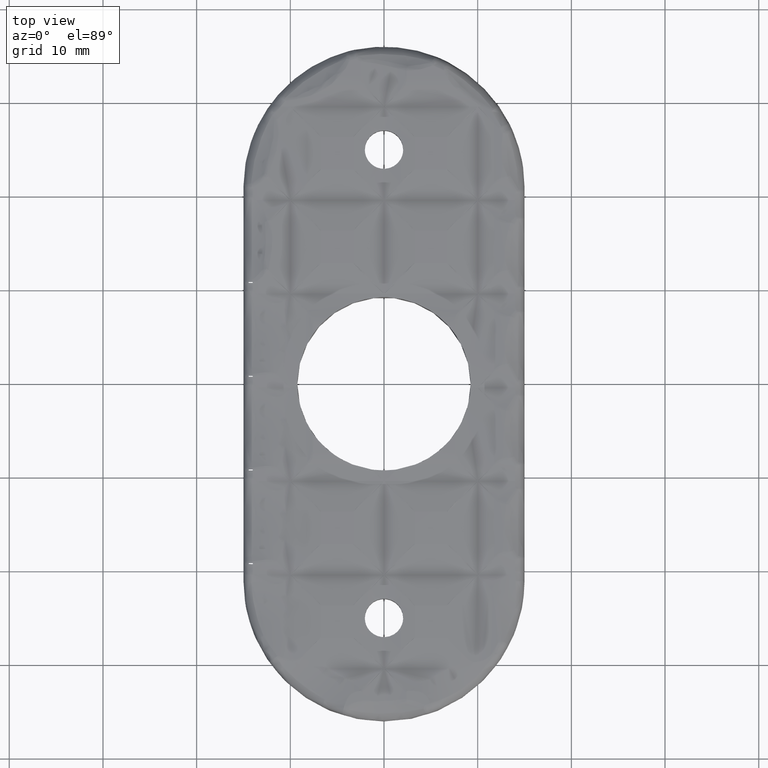
[diagram: clean part render]
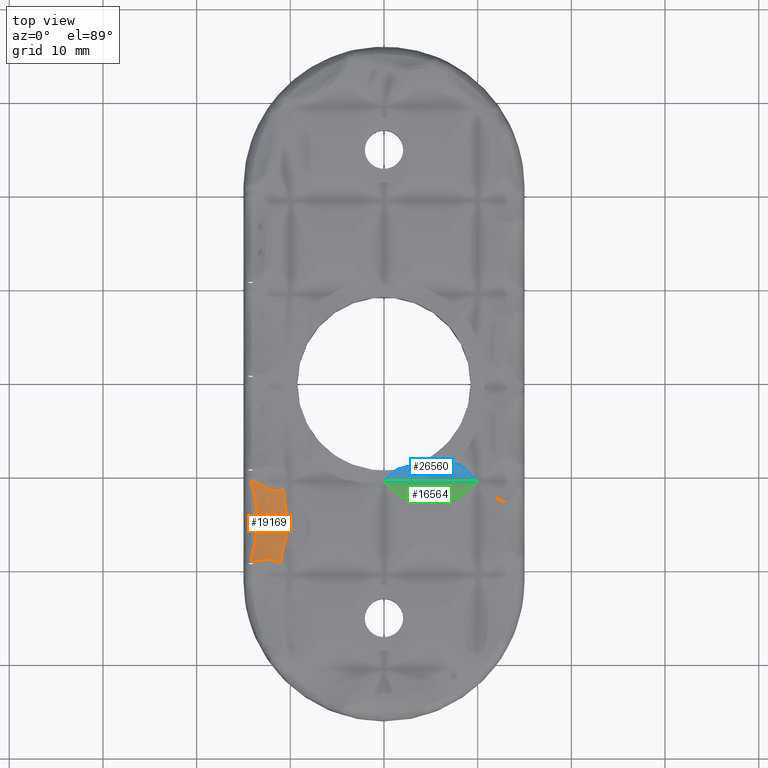
[diagram: same view with three faces highlighted in distinct colors, each labeled with its STEP entity id]
A machine part, top view with three faces highlighted in distinct colors.
Their STEP definitions:

[orange] entity #19169 — the highlighted face is a freeform B-spline surface patch.
#29 = CARTESIAN_POINT ( 'NONE',  ( -14.08608896316507000, -18.77497448229085800, 3.248584083875613700 ) ) ;
#640 = CARTESIAN_POINT ( 'NONE',  ( -14.12127469794403500, -10.54882673199064400, 3.171531712919891900 ) ) ;
#817 = CARTESIAN_POINT ( 'NONE',  ( -14.11266342140069000, -10.46110090897416000, 3.190565799841316200 ) ) ;
#848 = VERTEX_POINT ( 'NONE', #3709 ) ;
#855 = CARTESIAN_POINT ( 'NONE',  ( -14.12127809587029000, -18.42023171793272200, 3.171527061294322700 ) ) ;
#1003 = CARTESIAN_POINT ( 'NONE',  ( -10.75634458541407700, -11.20495393595386900, 3.274764121725517000 ) ) ;
#1025 = CARTESIAN_POINT ( 'NONE',  ( -10.75534529548593500, -11.20991074370599700, 3.274698613453655800 ) ) ;
#1042 = CARTESIAN_POINT ( 'NONE',  ( -12.65750095005525300, -18.77559889850161700, 3.337555865132876500 ) ) ;
#1081 = CARTESIAN_POINT ( 'NONE',  ( -10.75434591489991300, -11.21486921703347800, 3.274633234884894800 ) ) ;
#1103 = CARTESIAN_POINT ( 'NONE',  ( -10.64176919335431000, -11.77482324838714700, 3.267282739368983600 ) ) ;
#1121 = CARTESIAN_POINT ( 'NONE',  ( -11.66338399263677100, -18.86432929092068600, 3.336994703460364400 ) ) ;
#1170 = CARTESIAN_POINT ( 'NONE',  ( -10.55928281383110900, -12.34032385916235200, 3.263409995133653500 ) ) ;
#1194 = CARTESIAN_POINT ( 'NONE',  ( -10.47898777796058000, -13.20420938185235800, 3.259894462820795500 ) ) ;
#1268 = CARTESIAN_POINT ( 'NONE',  ( -10.45949912024674700, -13.49479079247724300, 3.259127720159465300 ) ) ;
#1292 = CARTESIAN_POINT ( 'NONE',  ( -10.43549811671231700, -14.08134098076543600, 3.258198122844667500 ) ) ;
#1351 = CARTESIAN_POINT ( 'NONE',  ( -10.43101659318880800, -14.37836852408708800, 3.258035844533576400 ) ) ;
#1379 = CARTESIAN_POINT ( 'NONE',  ( -10.43763718635152800, -14.97144304084417900, 3.258284712206336300 ) ) ;
#1475 = CARTESIAN_POINT ( 'NONE',  ( -10.44875556425562600, -15.26823984790638800, 3.258696774912474200 ) ) ;
#1480 = CARTESIAN_POINT ( 'NONE',  ( -12.56699186604595300, -18.56243408978601700, 3.453152798270545000 ) ) ;
#1574 = CARTESIAN_POINT ( 'NONE',  ( -10.48583430022490500, -15.85299296104909800, 3.260196526094101700 ) ) ;
#1579 = CARTESIAN_POINT ( 'NONE',  ( -13.67270539918670000, -16.52433896878234200, 2.955386151759011000 ) ) ;
#1664 = CARTESIAN_POINT ( 'NONE',  ( -11.57709643640317600, -11.44860505594644500, 3.292063784340134800 ) ) ;
#1665 = CARTESIAN_POINT ( 'NONE',  ( -10.51177153858324300, -16.14189017327682400, 3.261283940124938500 ) ) ;
#1671 = CARTESIAN_POINT ( 'NONE',  ( -10.43763457917427000, -14.97144317992695400, 3.258284613455253900 ) ) ;
#1747 = CARTESIAN_POINT ( 'NONE',  ( -12.93933792647229600, -10.93002011932497400, 3.248262553762135200 ) ) ;
#1749 = CARTESIAN_POINT ( 'NONE',  ( -10.61099334781181400, -16.99850038507645800, 3.265964647030933600 ) ) ;
#1752 = CARTESIAN_POINT ( 'NONE',  ( -12.04009868456995300, -13.42459485416780800, 3.324634811497817900 ) ) ;
#1838 = CARTESIAN_POINT ( 'NONE',  ( -13.65297826025540200, -10.51100821629710000, 3.232020570116771900 ) ) ;
#1840 = CARTESIAN_POINT ( 'NONE',  ( -13.63193341852450200, -16.23722065709158700, 2.937712375095038000 ) ) ;
#1841 = CARTESIAN_POINT ( 'NONE',  ( -13.83421942451184200, -11.59691720527755400, 3.028619630247299600 ) ) ;
#2195 = EDGE_CURVE ( 'NONE', #848, #9812, #15584, .T. ) ;
#2202 = CARTESIAN_POINT ( 'NONE',  ( -10.70554258700268800, -17.55620248847762000, 3.270890588806700800 ) ) ;
#2308 = CARTESIAN_POINT ( 'NONE',  ( -10.88958622955494700, -18.37279387089781900, 3.284107850035698800 ) ) ;
#2388 = CARTESIAN_POINT ( 'NONE',  ( -10.95797563292690100, -18.64106561464483700, 3.289514772152366100 ) ) ;
#2479 = CARTESIAN_POINT ( 'NONE',  ( -11.05808089865549300, -18.99266603521926600, 3.298483966626378500 ) ) ;
#2662 = VERTEX_POINT ( 'NONE', #23344 ) ;
#3043 = CARTESIAN_POINT ( 'NONE',  ( -13.61912900768670900, -18.89016489367905600, 3.305571317586395400 ) ) ;
#3113 = CARTESIAN_POINT ( 'NONE',  ( -11.11274259047612000, -19.17421630962164500, 3.303668035174709900 ) ) ;
#3132 = CARTESIAN_POINT ( 'NONE',  ( -12.58069621622465000, -18.77185226206378500, 3.339151667982780000 ) ) ;
#3218 = CARTESIAN_POINT ( 'NONE',  ( -11.54335839634183700, -18.90714190583469900, 3.332428914038684000 ) ) ;
#3362 = CARTESIAN_POINT ( 'NONE',  ( -10.81267136967503000, -11.25692458919599300, 3.278456601918391400 ) ) ;
#3571 = CARTESIAN_POINT ( 'NONE',  ( -11.10570044068573000, -19.15992999058930500, 3.302750549445874200 ) ) ;
#3661 = CARTESIAN_POINT ( 'NONE',  ( -10.87466198095676400, -11.30023502554278500, 3.281766990252890500 ) ) ;
#3665 = CARTESIAN_POINT ( 'NONE',  ( -12.14006909611955200, -16.56565009251457000, 3.346967179855549800 ) ) ;
#3709 = CARTESIAN_POINT ( 'NONE',  ( -11.11274259047612000, -19.17421630962164500, 3.303668035174709900 ) ) ;
#3749 = CARTESIAN_POINT ( 'NONE',  ( -11.75884825382949600, -11.43107546748622900, 3.289535123995516400 ) ) ;
#3754 = CARTESIAN_POINT ( 'NONE',  ( -13.52203766915548600, -14.80787497265431400, 2.891520926480271500 ) ) ;
#3843 = CARTESIAN_POINT ( 'NONE',  ( -13.11129144720517000, -10.82892264719667000, 3.242980330843358200 ) ) ;
#3847 = CARTESIAN_POINT ( 'NONE',  ( -10.55928025569849600, -12.34032324665572000, 3.263409871154903100 ) ) ;
#3934 = CARTESIAN_POINT ( 'NONE',  ( -13.67599011074464100, -10.49822588501671000, 3.231742419207281900 ) ) ;
#3937 = CARTESIAN_POINT ( 'NONE',  ( -13.80427972380105000, -17.23170032047962900, 3.014776672256118200 ) ) ;
#3942 = CARTESIAN_POINT ( 'NONE',  ( -12.66828385294414100, -10.05530009349831400, 3.480388394514824400 ) ) ;
#4210 = CARTESIAN_POINT ( 'NONE',  ( -14.12127809587029000, -18.42023171793272200, 3.171527061294322700 ) ) ;
#4894 = CARTESIAN_POINT ( 'NONE',  ( -14.06797781313101900, -18.95391342304952800, 3.286946360126998400 ) ) ;
#5122 = CARTESIAN_POINT ( 'NONE',  ( -13.46333462915508700, -18.86713438048373700, 3.311699757188719200 ) ) ;
#5154 = ORIENTED_EDGE ( 'NONE', *, *, #20246, .F. ) ;
#5210 = CARTESIAN_POINT ( 'NONE',  ( -12.41630744589956200, -18.76590107451609400, 3.342233584557799700 ) ) ;
#5293 = CARTESIAN_POINT ( 'NONE',  ( -11.45767771715059900, -18.94370267578251100, 3.328441149360345200 ) ) ;
#5563 = CARTESIAN_POINT ( 'NONE',  ( -11.84715717390270100, -21.04130513615603700, 3.398499096508719400 ) ) ;
#5644 = CARTESIAN_POINT ( 'NONE',  ( -13.88835184374420500, -17.58932713497514700, 3.054809098065520300 ) ) ;
#5735 = CARTESIAN_POINT ( 'NONE',  ( -11.02832955090184600, -11.37625945500183800, 3.287766743847648800 ) ) ;
#5740 = CARTESIAN_POINT ( 'NONE',  ( -10.51176896120617400, -16.14189064672022400, 3.261283825898672700 ) ) ;
#5799 = ORIENTED_EDGE ( 'NONE', *, *, #21673, .T. ) ;
#5823 = CARTESIAN_POINT ( 'NONE',  ( -12.12090361847039700, -11.32891879009485200, 3.278642505816386200 ) ) ;
#5830 = CARTESIAN_POINT ( 'NONE',  ( -12.00361093669609300, -14.39664264818160300, 3.316698256355744300 ) ) ;
#5916 = CARTESIAN_POINT ( 'NONE',  ( -13.22576612324287400, -10.76081581269757200, 3.239904783062847100 ) ) ;
#5920 = CARTESIAN_POINT ( 'NONE',  ( -13.59088973012240400, -13.06062481798946700, 2.920300505853398000 ) ) ;
#6001 = CARTESIAN_POINT ( 'NONE',  ( -13.68397264075846900, -10.49380998447381700, 3.231648538990244700 ) ) ;
#6002 = CARTESIAN_POINT ( 'NONE',  ( -14.03331305374822900, -18.14264689571723100, 3.125661057175119300 ) ) ;
#6004 = CARTESIAN_POINT ( 'NONE',  ( -11.50763233871267500, -8.655850841887836800, 3.346812488352004100 ) ) ;
#6146 = FACE_OUTER_BOUND ( 'NONE', #17475, .T. ) ;
#6639 = CARTESIAN_POINT ( 'NONE',  ( -11.08505249819601000, -19.08390178278178000, 3.300990599754304100 ) ) ;
#6652 = ORIENTED_EDGE ( 'NONE', *, *, #13157, .T. ) ;
#7111 = VERTEX_POINT ( 'NONE', #4894 ) ;
#7211 = CARTESIAN_POINT ( 'NONE',  ( -13.37116517848814800, -18.85380774133280100, 3.315214977300750700 ) ) ;
#7300 = CARTESIAN_POINT ( 'NONE',  ( -12.09509924048723800, -18.78136081552913300, 3.343910578518153500 ) ) ;
#7398 = CARTESIAN_POINT ( 'NONE',  ( -11.20446678731120500, -19.08750402886898100, 3.312536170980383800 ) ) ;
#7662 = CARTESIAN_POINT ( 'NONE',  ( -11.63318485960221200, -20.60815257412632900, 3.363871405594851100 ) ) ;
#7762 = CARTESIAN_POINT ( 'NONE',  ( -12.39944729177047800, -17.92476629100268300, 3.409473129425744100 ) ) ;
#7851 = CARTESIAN_POINT ( 'NONE',  ( -11.12157496994317400, -11.40682307767728100, 3.290186510476192700 ) ) ;
#7857 = CARTESIAN_POINT ( 'NONE',  ( -13.56408902241644800, -15.58513506312995200, 2.909015788948654100 ) ) ;
#7932 = CARTESIAN_POINT ( 'NONE',  ( -12.35971513020866100, -11.23304506393810700, 3.269795982085604600 ) ) ;
#7937 = CARTESIAN_POINT ( 'NONE',  ( -10.43549550867480700, -14.08134086560491100, 3.258198024540051000 ) ) ;
#8022 = CARTESIAN_POINT ( 'NONE',  ( -13.27039229872480600, -10.73417717660157700, 3.238824239298447000 ) ) ;
#8024 = CARTESIAN_POINT ( 'NONE',  ( -13.80389853147005200, -11.73906701721583100, 3.014617442048445700 ) ) ;
#8026 = CARTESIAN_POINT ( 'NONE',  ( -12.16342075313206900, -12.24138960753624900, 3.352132158567444600 ) ) ;
#8111 = CARTESIAN_POINT ( 'NONE',  ( -13.90635844015006700, -10.37100714211422000, 3.229432356233613800 ) ) ;
#8117 = CARTESIAN_POINT ( 'NONE',  ( -14.09643371043636000, -10.61388325712952800, 3.157732706141940700 ) ) ;
#8505 = ORIENTED_EDGE ( 'NONE', *, *, #26538, .T. ) ;
#9099 = CARTESIAN_POINT ( 'NONE',  ( -14.10401149833305300, -10.37380509530126600, 3.209526423700795700 ) ) ;
#9309 = CARTESIAN_POINT ( 'NONE',  ( -13.32663909407535400, -18.84749991254100700, 3.316880306233556600 ) ) ;
#9410 = CARTESIAN_POINT ( 'NONE',  ( -11.89440467729722800, -18.80940626483058900, 3.342199274661136400 ) ) ;
#9495 = EDGE_CURVE ( 'NONE', #9812, #2662, #16875, .T. ) ;
#9574 = B_SPLINE_CURVE_WITH_KNOTS ( 'NONE', 3,
 ( #14594, #29, #16667, #4210 ),
 .UNSPECIFIED., .F., .F.,
 ( 4, 4 ),
 ( 0.0000000000000000000, 1.000000000000000000 ),
 .UNSPECIFIED. ) ;
#9772 = CARTESIAN_POINT ( 'NONE',  ( -14.15919381606641300, -18.55103691980717100, 3.190506646060893300 ) ) ;
#9812 = VERTEX_POINT ( 'NONE', #10454 ) ;
#9853 = CARTESIAN_POINT ( 'NONE',  ( -14.12127469794403500, -10.54882673199064400, 3.171531712919891900 ) ) ;
#9857 = CARTESIAN_POINT ( 'NONE',  ( -10.88958380947025400, -18.37279498214034500, 3.284107663156959200 ) ) ;
#9942 = CARTESIAN_POINT ( 'NONE',  ( -11.23245593306472800, -11.43514590497886200, 3.292345228060827200 ) ) ;
#9946 = CARTESIAN_POINT ( 'NONE',  ( -12.04528898360324800, -15.61742707611720600, 3.325786392184102000 ) ) ;
#9970 = B_SPLINE_CURVE_WITH_KNOTS ( 'NONE', 3,
 ( #23833, #25917, #15509, #3043, #17627, #5122, #19701, #7211, #21826, #9309, #23919, #11412, #26015, #13513, #1042, #15593, #3132, #17703, #5210, #19793, #7300, #21909, #9410, #24011, #11499, #26103, #13608, #1121, #15684, #3218, #17798, #5293, #19885, #7398, #22002 ),
 .UNSPECIFIED., .F., .F.,
 ( 4, 2, 2, 1, 2, 2, 2, 1, 1, 2, 2, 2, 1, 1, 2, 2, 2, 2, 2, 4 ),
 ( 0.0000000000000000000, 0.1250000000000044100, 0.1875000000000063600, 0.2187500000000073300, 0.2343750000000084400, 0.2500000000000095500, 0.3750000000000102100, 0.4375000000000105500, 0.4687500000000114400, 0.4843750000000109900, 0.5000000000000105500, 0.6250000000000105500, 0.6875000000000114400, 0.7187500000000112100, 0.7343750000000116600, 0.7500000000000119900, 0.8125000000000114400, 0.8437500000000097700, 0.8750000000000081000, 1.000000000000000000 ),
 .UNSPECIFIED. ) ;
#10037 = CARTESIAN_POINT ( 'NONE',  ( -12.45233580099602500, -11.19031291145257100, 3.266209095787207400 ) ) ;
#10042 = CARTESIAN_POINT ( 'NONE',  ( -13.52082435740623700, -14.21678393696859100, 2.891016112018128100 ) ) ;
#10136 = CARTESIAN_POINT ( 'NONE',  ( -13.34606170705771800, -10.68898753027262000, 3.237078799506031900 ) ) ;
#10138 = CARTESIAN_POINT ( 'NONE',  ( -13.57771658153354900, -13.07136053096337800, 2.913732276024156000 ) ) ;
#10142 = CARTESIAN_POINT ( 'NONE',  ( -10.86492559347700700, -10.66483524882984200, 3.281853312992462500 ) ) ;
#10217 = CARTESIAN_POINT ( 'NONE',  ( -12.94930062465778100, -9.290331150388695400, 3.562908148854065700 ) ) ;
#10454 = CARTESIAN_POINT ( 'NONE',  ( -10.75634458541407700, -11.20495393595386900, 3.274764121725517000 ) ) ;
#10470 = VERTEX_POINT ( 'NONE', #855 ) ;
#11412 = CARTESIAN_POINT ( 'NONE',  ( -13.05064452782434300, -18.81055466385400600, 3.326736401667372200 ) ) ;
#11499 = CARTESIAN_POINT ( 'NONE',  ( -11.81919802220861700, -18.82476164332591800, 3.340858006429058100 ) ) ;
#11850 = CARTESIAN_POINT ( 'NONE',  ( -12.75343474081491700, -19.17011835697952200, 3.504343605663801800 ) ) ;
#11940 = CARTESIAN_POINT ( 'NONE',  ( -13.77291065675847500, -17.06661368971170100, 3.000713396187255600 ) ) ;
#12033 = CARTESIAN_POINT ( 'NONE',  ( -11.42092501579082500, -11.45274540186524700, 3.293171594228966500 ) ) ;
#12039 = CARTESIAN_POINT ( 'NONE',  ( -10.44875296151962900, -15.26824007176037400, 3.258696673810111300 ) ) ;
#12114 = CARTESIAN_POINT ( 'NONE',  ( -12.48184788237230700, -11.17624208820780000, 3.265063011643043900 ) ) ;
#12119 = CARTESIAN_POINT ( 'NONE',  ( -12.02528039157312600, -13.66515236392970100, 3.321404351801366100 ) ) ;
#12199 = CARTESIAN_POINT ( 'NONE',  ( -13.50749439659463900, -10.59384833804529600, 3.234101215010697100 ) ) ;
#12200 = CARTESIAN_POINT ( 'NONE',  ( -13.51955148880350600, -14.84262997370342200, 2.890487121411426500 ) ) ;
#12204 = CARTESIAN_POINT ( 'NONE',  ( -13.75983331935200500, -11.94798201279057700, 2.994494158355089900 ) ) ;
#12638 = VERTEX_POINT ( 'NONE', #640 ) ;
#13157 = EDGE_CURVE ( 'NONE', #7111, #848, #9970, .T. ) ;
#13301 = B_SPLINE_CURVE_WITH_KNOTS ( 'NONE', 3,
 ( #23706, #9099, #817, #15383 ),
 .UNSPECIFIED., .F., .F.,
 ( 4, 4 ),
 ( 0.0000000000000000000, 1.000000000000000000 ),
 .UNSPECIFIED. ) ;
#13513 = CARTESIAN_POINT ( 'NONE',  ( -12.76597950611523300, -18.78261765489191500, 3.335019008530463400 ) ) ;
#13608 = CARTESIAN_POINT ( 'NONE',  ( -11.72550632192478500, -18.84650514474471400, 3.338816744879972400 ) ) ;
#13974 = CARTESIAN_POINT ( 'NONE',  ( -11.18534687393133900, -19.41196842992513500, 3.310600044654419700 ) ) ;
#13995 = B_SPLINE_CURVE_WITH_KNOTS ( 'NONE', 3,
 ( #9853, #18412, #20518, #8024, #22631, #10138, #24745, #12200, #26801, #14330, #1840, #16396, #3937, #18521, #6002, #20599 ),
 .UNSPECIFIED., .F., .F.,
 ( 4, 2, 2, 2, 2, 2, 2, 4 ),
 ( 0.0000000000000000000, 0.1250000000000004200, 0.2500000000000008300, 0.5000000000000010000, 0.6250000000000007800, 0.7500000000000004400, 0.8750000000000002200, 1.000000000000000000 ),
 .UNSPECIFIED. ) ;
#14068 = CARTESIAN_POINT ( 'NONE',  ( -12.21140943002822600, -17.02722225957973700, 3.363267950824290000 ) ) ;
#14149 = CARTESIAN_POINT ( 'NONE',  ( -11.53762139239254800, -11.45106413748141200, 3.292480992841592800 ) ) ;
#14154 = CARTESIAN_POINT ( 'NONE',  ( -13.52837204489708600, -15.00496914863917700, 2.894130939152306200 ) ) ;
#14229 = CARTESIAN_POINT ( 'NONE',  ( -12.73939478370485600, -11.04415871947041000, 3.255128512367213600 ) ) ;
#14233 = CARTESIAN_POINT ( 'NONE',  ( -10.47898518735877900, -13.20420901613138700, 3.259894355387090900 ) ) ;
#14327 = CARTESIAN_POINT ( 'NONE',  ( -13.62112937622515900, -10.52883273511943500, 3.232425215323916100 ) ) ;
#14330 = CARTESIAN_POINT ( 'NONE',  ( -13.59059387919032600, -15.89662747504792200, 2.920174477597703400 ) ) ;
#14334 = CARTESIAN_POINT ( 'NONE',  ( -12.43276179647426400, -10.88554784002228900, 3.417450220108662500 ) ) ;
#14594 = CARTESIAN_POINT ( 'NONE',  ( -14.06797781313101900, -18.95391342304952800, 3.286946360126998400 ) ) ;
#15383 = CARTESIAN_POINT ( 'NONE',  ( -14.12127469794403500, -10.54882673199064400, 3.171531712919891900 ) ) ;
#15509 = CARTESIAN_POINT ( 'NONE',  ( -13.80898907169338600, -18.91821568582981400, 3.297871917431482100 ) ) ;
#15584 =( BOUNDED_CURVE ( )  B_SPLINE_CURVE ( 3, ( #3113, #6639, #2479, #2388, #2308, #2202, #1749, #1665, #1574, #1475, #1379, #1351, #1292, #1268, #1194, #1170, #1103, #1081, #1025, #1003 ),
 .UNSPECIFIED., .F., .T. ) 
 B_SPLINE_CURVE_WITH_KNOTS ( ( 4, 2, 2, 2, 2, 2, 2, 2, 2, 4 ),
 ( 0.0000000000000000000, 0.03790322474194478300, 0.1445909589255046600, 0.3579664272926248400, 0.4646541614761851600, 0.5713418956597454700, 0.6780296298433057300, 0.7847173640268660900, 0.9980928323939866100, 1.000000000000000000 ),
 .UNSPECIFIED. ) 
 CURVE ( )  GEOMETRIC_REPRESENTATION_ITEM ( )  RATIONAL_B_SPLINE_CURVE ( ( 0.9999999783004206400, 0.9999999783443015400, 0.9999999783880512100, 0.9999999785538551400, 0.9999999786745085200, 0.9999999790135405400, 0.9999999792078915200, 0.9999999794176306400, 0.9999999794740068700, 0.9999999795552359000, 0.9999999795800274000, 0.9999999795947496200, 0.9999999795847125400, 0.9999999795316579800, 0.9999999794887182200, 0.9999999793158859100, 0.9999999791414981900, 0.9999999789261964100, 0.9999999789242866000, 0.9999999789223741300 ) ) 
 REPRESENTATION_ITEM ( '' )  );
#15593 = CARTESIAN_POINT ( 'NONE',  ( -12.61136900380248000, -18.77325808292566100, 3.338529014891458600 ) ) ;
#15684 = CARTESIAN_POINT ( 'NONE',  ( -11.57301316718163300, -18.89584202499042900, 3.333647127851814900 ) ) ;
#16041 = CARTESIAN_POINT ( 'NONE',  ( -13.93020355217330500, -17.75669852560738700, 3.074998573179810600 ) ) ;
#16136 = CARTESIAN_POINT ( 'NONE',  ( -10.61099081080049100, -16.99850110325283500, 3.265964512633529300 ) ) ;
#16223 = CARTESIAN_POINT ( 'NONE',  ( -11.59917142476051100, -11.44678383141131100, 3.291786919708704000 ) ) ;
#16231 = CARTESIAN_POINT ( 'NONE',  ( -12.00865011233534600, -14.88763560392019300, 3.317789589511284100 ) ) ;
#16312 = CARTESIAN_POINT ( 'NONE',  ( -13.00734547004909700, -10.89029966319249000, 3.246056363635970100 ) ) ;
#16317 = CARTESIAN_POINT ( 'NONE',  ( -13.54553932455530700, -13.63430620941447900, 2.901256236197071300 ) ) ;
#16394 = CARTESIAN_POINT ( 'NONE',  ( -13.66906268540540600, -10.50206484377480700, 3.231824852576514800 ) ) ;
#16396 = CARTESIAN_POINT ( 'NONE',  ( -13.73847325595332300, -16.90383364211945900, 2.984866160766720200 ) ) ;
#16397 = CARTESIAN_POINT ( 'NONE',  ( -11.32360203318811300, -9.132370598595452200, 3.324874986762406300 ) ) ;
#16667 = CARTESIAN_POINT ( 'NONE',  ( -14.10392154487009400, -18.59712646442448000, 3.209912265309007800 ) ) ;
#16875 = B_SPLINE_CURVE_WITH_KNOTS ( 'NONE', 3,
 ( #24464, #3362, #3661, #18249, #5735, #20327, #7851, #22456, #9942, #24557, #12033, #26627, #14149, #1664, #16223, #3749, #18335, #5823, #20423, #7932, #22544, #10037, #24646, #12114, #26715, #14229, #1747, #16312, #3843, #18410, #5916, #20515, #8022, #22628, #10136, #24741, #12199, #26800, #14327, #1838, #16394, #3934, #18517, #6001, #20598, #8111, #22722 ),
 .UNSPECIFIED., .F., .F.,
 ( 4, 2, 1, 2, 2, 2, 1, 2, 2, 2, 1, 1, 1, 2, 2, 2, 2, 1, 1, 2, 2, 2, 1, 1, 1, 1, 2, 2, 4 ),
 ( 0.0000000000000000000, 0.06249999999999138200, 0.09374999999998739900, 0.1093749999999854100, 0.1249999999999834300, 0.1874999999999786300, 0.2187499999999762700, 0.2343749999999744100, 0.2499999999999725200, 0.3749999999999585900, 0.4374999999999516500, 0.4687499999999476000, 0.4843749999999452700, 0.4921874999999437700, 0.4999999999999423800, 0.6249999999999285000, 0.6874999999999211700, 0.7187499999999175100, 0.7343749999999151800, 0.7421874999999145100, 0.7499999999999138500, 0.8124999999999091800, 0.8437499999999074100, 0.8593749999999075200, 0.8671874999999066300, 0.8710937499999058500, 0.8730468749999058500, 0.8749999999999057400, 1.000000000000000000 ),
 .UNSPECIFIED. ) ;
#17475 = EDGE_LOOP ( 'NONE', ( #6652, #19672, #22712, #5799, #8505, #5154 ) ) ;
#17627 = CARTESIAN_POINT ( 'NONE',  ( -13.55640908543817600, -18.88081804457302900, 3.308072036488632700 ) ) ;
#17703 = CARTESIAN_POINT ( 'NONE',  ( -12.56687704368665800, -18.77127946775221500, 3.339422364840195300 ) ) ;
#17798 = CARTESIAN_POINT ( 'NONE',  ( -11.48501447477817700, -18.93140386767775900, 3.329789424672192000 ) ) ;
#18164 = CARTESIAN_POINT ( 'NONE',  ( -12.50849793523105900, -18.35397262378899100, 3.437632749601109900 ) ) ;
#18249 = CARTESIAN_POINT ( 'NONE',  ( -10.97575527174224400, -11.35295376829523500, 3.285904859243494100 ) ) ;
#18257 = CARTESIAN_POINT ( 'NONE',  ( -13.61988324680354600, -16.15398513101476400, 2.932667434093852800 ) ) ;
#18335 = CARTESIAN_POINT ( 'NONE',  ( -11.90268091203798000, -11.39891104828085700, 3.285764942804664000 ) ) ;
#18337 = CARTESIAN_POINT ( 'NONE',  ( -10.43101398336395400, -14.37836849375996500, 3.258035747179745200 ) ) ;
#18410 = CARTESIAN_POINT ( 'NONE',  ( -13.16374613855161800, -10.79778974462833400, 3.241500311303576500 ) ) ;
#18412 = CARTESIAN_POINT ( 'NONE',  ( -14.03271483837855800, -10.82824595571268800, 3.125367948433176700 ) ) ;
#18415 = CARTESIAN_POINT ( 'NONE',  ( -12.10098817664074000, -12.70946217487268000, 3.338128263341338300 ) ) ;
#18517 = CARTESIAN_POINT ( 'NONE',  ( -13.68061595156615300, -10.49566529195833600, 3.231687788231876600 ) ) ;
#18521 = CARTESIAN_POINT ( 'NONE',  ( -13.95155241292003200, -17.84963743151903900, 3.085106122036755500 ) ) ;
#18522 = CARTESIAN_POINT ( 'NONE',  ( -14.00240884010323200, -10.93031684928461000, 3.110173202117158600 ) ) ;
#19169 = ADVANCED_FACE ( 'NONE', ( #6146 ), #25794, .T. ) ;
#19672 = ORIENTED_EDGE ( 'NONE', *, *, #2195, .T. ) ;
#19701 = CARTESIAN_POINT ( 'NONE',  ( -13.41704843525992500, -18.86037674318336200, 3.313482778633386700 ) ) ;
#19793 = CARTESIAN_POINT ( 'NONE',  ( -12.28558780194605000, -18.76717511531252200, 3.343680210554728300 ) ) ;
#19885 = CARTESIAN_POINT ( 'NONE',  ( -11.30995617985201900, -19.01615217411579200, 3.320467438004549800 ) ) ;
#20054 = CARTESIAN_POINT ( 'NONE',  ( -13.04417834877291500, -19.90970345665757100, 3.592216117312423400 ) ) ;
#20154 = CARTESIAN_POINT ( 'NONE',  ( -14.26264545105338900, -18.83869360152518600, 3.246985543420148000 ) ) ;
#20240 = CARTESIAN_POINT ( 'NONE',  ( -10.95797324220926900, -18.64106680264558200, 3.289514573198719600 ) ) ;
#20246 = EDGE_CURVE ( 'NONE', #7111, #10470, #9574, .T. ) ;
#20327 = CARTESIAN_POINT ( 'NONE',  ( -11.08388324380399400, -11.39516986414521300, 3.289269694020958500 ) ) ;
#20334 = CARTESIAN_POINT ( 'NONE',  ( -12.06497968279195900, -15.85657834858595500, 3.330120472873222300 ) ) ;
#20423 = CARTESIAN_POINT ( 'NONE',  ( -12.23063938746931500, -11.28848911899043400, 3.274717551928819400 ) ) ;
#20428 = CARTESIAN_POINT ( 'NONE',  ( -13.51826833815957800, -14.41403133822691100, 2.889965507285575900 ) ) ;
#20515 = CARTESIAN_POINT ( 'NONE',  ( -13.25251901105719000, -10.74484777924579500, 3.239252104702410800 ) ) ;
#20518 = CARTESIAN_POINT ( 'NONE',  ( -13.95078464528555500, -11.12235237151418100, 3.084743590430573800 ) ) ;
#20521 = CARTESIAN_POINT ( 'NONE',  ( -10.64176666876208100, -11.77482247430073400, 3.267282598594538600 ) ) ;
#20598 = CARTESIAN_POINT ( 'NONE',  ( -13.76720365719937800, -10.44784303205710600, 3.230680484608492900 ) ) ;
#20599 = CARTESIAN_POINT ( 'NONE',  ( -14.12127809587029000, -18.42023171793272200, 3.171527061294322700 ) ) ;
#20602 = CARTESIAN_POINT ( 'NONE',  ( -12.80186115524437400, -9.661282085259300000, 3.518017222629072900 ) ) ;
#21673 = EDGE_CURVE ( 'NONE', #2662, #12638, #13301, .T. ) ;
#21826 = CARTESIAN_POINT ( 'NONE',  ( -13.34066864037721000, -18.84947725033237700, 3.316357985734503800 ) ) ;
#21909 = CARTESIAN_POINT ( 'NONE',  ( -12.00125171271989200, -18.79152020014242900, 3.343542070111476000 ) ) ;
#22002 = CARTESIAN_POINT ( 'NONE',  ( -11.11274259047612000, -19.17421630962164500, 3.303668035174709900 ) ) ;
#22284 = CARTESIAN_POINT ( 'NONE',  ( -12.89219992077538300, -19.55163847796592000, 3.544595999093820700 ) ) ;
#22371 = CARTESIAN_POINT ( 'NONE',  ( -13.80978979680543400, -17.24476519620787600, 3.017704576953243100 ) ) ;
#22456 = CARTESIAN_POINT ( 'NONE',  ( -11.14219538487678900, -11.41253510056827600, 3.290629837154457800 ) ) ;
#22464 = CARTESIAN_POINT ( 'NONE',  ( -10.48583171239448200, -15.85299335195790200, 3.260196417251621300 ) ) ;
#22544 = CARTESIAN_POINT ( 'NONE',  ( -12.42451124331760700, -11.20340823729963700, 3.267289073040603700 ) ) ;
#22550 = CARTESIAN_POINT ( 'NONE',  ( -12.00702496886672000, -14.15073333271230500, 3.317433804801450200 ) ) ;
#22628 = CARTESIAN_POINT ( 'NONE',  ( -13.28110501939428700, -10.72777992743304200, 3.238573501779656200 ) ) ;
#22631 = CARTESIAN_POINT ( 'NONE',  ( -13.73874464890002900, -12.06332139626853100, 2.984998396881513900 ) ) ;
#22633 = CARTESIAN_POINT ( 'NONE',  ( -13.63728347484859800, -12.68509221704404400, 2.939972057474284900 ) ) ;
#22712 = ORIENTED_EDGE ( 'NONE', *, *, #9495, .T. ) ;
#22722 = CARTESIAN_POINT ( 'NONE',  ( -14.09532383466617300, -10.28688333174987500, 3.228351944499739300 ) ) ;
#22726 = CARTESIAN_POINT ( 'NONE',  ( -11.71398736965435800, -8.207127200278304000, 3.377743616645523700 ) ) ;
#23344 = CARTESIAN_POINT ( 'NONE',  ( -14.09532383466617300, -10.28688333174987500, 3.228351944499739300 ) ) ;
#23706 = CARTESIAN_POINT ( 'NONE',  ( -14.09532383466617300, -10.28688333174987500, 3.228351944499739300 ) ) ;
#23833 = CARTESIAN_POINT ( 'NONE',  ( -14.06797781313101900, -18.95391342304952800, 3.286946360126998400 ) ) ;
#23919 = CARTESIAN_POINT ( 'NONE',  ( -13.17969461199719600, -18.82701204822055600, 3.322305101687862200 ) ) ;
#24011 = CARTESIAN_POINT ( 'NONE',  ( -11.84920084771874100, -18.81843340674290100, 3.341421849213229900 ) ) ;
#24374 = CARTESIAN_POINT ( 'NONE',  ( -11.44087355917163300, -20.14670259327773700, 3.338849150608168800 ) ) ;
#24464 = CARTESIAN_POINT ( 'NONE',  ( -10.75634458541407700, -11.20495393595386900, 3.274764121725517000 ) ) ;
#24471 = CARTESIAN_POINT ( 'NONE',  ( -12.34865847143539400, -17.70282428629084500, 3.396777503255190600 ) ) ;
#24557 = CARTESIAN_POINT ( 'NONE',  ( -11.30669994271219100, -11.44609672961522400, 3.293052242847147600 ) ) ;
#24561 = CARTESIAN_POINT ( 'NONE',  ( -13.54940454616744500, -15.39328677959799300, 2.902880835401692400 ) ) ;
#24646 = CARTESIAN_POINT ( 'NONE',  ( -12.47089762138811300, -11.18149700731565900, 3.265488353865971600 ) ) ;
#24651 = CARTESIAN_POINT ( 'NONE',  ( -10.45949652182742700, -13.49479050976163900, 3.259127616811526600 ) ) ;
#24741 = CARTESIAN_POINT ( 'NONE',  ( -13.40814396123928800, -10.65192702247770200, 3.235819417900688900 ) ) ;
#24745 = CARTESIAN_POINT ( 'NONE',  ( -13.51958821304314300, -13.76840999795472500, 2.890499107682729100 ) ) ;
#24747 = CARTESIAN_POINT ( 'NONE',  ( -12.33048801432595300, -11.32289674580090600, 3.392051795160139900 ) ) ;
#24836 = CARTESIAN_POINT ( 'NONE',  ( -14.19776149831002400, -10.31588964268218300, 3.211922728424536600 ) ) ;
#25794 =( BOUNDED_SURFACE ( )  B_SPLINE_SURFACE ( 3, 2, ( 
 ( #5563, #20054, #20154 ),
 ( #7662, #22284, #9772 ),
 ( #24374, #11850, #26465 ),
 ( #13974, #1480, #16041 ),
 ( #3571, #18164, #5644 ),
 ( #20240, #7762, #22371 ),
 ( #9857, #24471, #11940 ),
 ( #26547, #14068, #1579 ),
 ( #16136, #3665, #18257 ),
 ( #5740, #20334, #7857 ),
 ( #22464, #9946, #24561 ),
 ( #12039, #26632, #14154 ),
 ( #1671, #16231, #3754 ),
 ( #18337, #5830, #20428 ),
 ( #7937, #22550, #10042 ),
 ( #24651, #12119, #26719 ),
 ( #14233, #1752, #16317 ),
 ( #3847, #18415, #5920 ),
 ( #20521, #8026, #22633 ),
 ( #10142, #24747, #12204 ),
 ( #26803, #14334, #1841 ),
 ( #16397, #3942, #18522 ),
 ( #6004, #20602, #8117 ),
 ( #22726, #10217, #24836 ) ),
 .UNSPECIFIED., .F., .F., .F. ) 
 B_SPLINE_SURFACE_WITH_KNOTS ( ( 4, 2, 2, 2, 2, 2, 2, 2, 2, 2, 2, 4 ),
 ( 3, 3 ),
 ( 0.02529349202657765100, 0.02704592598823570700, 0.02792214296906473500, 0.02879835994989376000, 0.03055079391155181300, 0.03142701089238084100, 0.03230322787320986900, 0.03317944485403889800, 0.03405566183486792600, 0.03580809579652598200, 0.03756052975818403900, 0.03931296371984208800 ),
 ( 0.0000000000000000000, 1.000000000000000000 ),
 .UNSPECIFIED. ) 
 GEOMETRIC_REPRESENTATION_ITEM ( )  RATIONAL_B_SPLINE_SURFACE ( (
 ( 1.000000000000000000, 0.9865228867766946400, 1.000000000000000000),
 ( 1.000000000000000000, 0.9866499937906654200, 1.000000000000000000),
 ( 1.000000000000000000, 0.9867939751669361200, 1.000000000000000000),
 ( 1.000000000000000000, 0.9870143753789264500, 1.000000000000000000),
 ( 1.000000000000000000, 0.9870885454335005500, 1.000000000000000000),
 ( 1.000000000000000000, 0.9872341910890207700, 1.000000000000000000),
 ( 1.000000000000000000, 0.9873060098769390600, 1.000000000000000000),
 ( 1.000000000000000000, 0.9875078185861160300, 1.000000000000000000),
 ( 1.000000000000000000, 0.9876235058886864100, 1.000000000000000000),
 ( 1.000000000000000000, 0.9877483530705017900, 1.000000000000000000),
 ( 1.000000000000000000, 0.9877819109268183300, 1.000000000000000000),
 ( 1.000000000000000000, 0.9878302625367404400, 1.000000000000000000),
 ( 1.000000000000000000, 0.9878450196487190700, 1.000000000000000000),
 ( 1.000000000000000000, 0.9878537831185564300, 1.000000000000000000),
 ( 1.000000000000000000, 0.9878478085202006000, 1.000000000000000000),
 ( 1.000000000000000000, 0.9878162278324790200, 1.000000000000000000),
 ( 1.000000000000000000, 0.9877906678445368400, 1.000000000000000000),
 ( 1.000000000000000000, 0.9876877895689943900, 1.000000000000000000),
 ( 1.000000000000000000, 0.9875839853114162200, 1.000000000000000000),
 ( 1.000000000000000000, 0.9873299394119509100, 1.000000000000000000),
 ( 1.000000000000000000, 0.9871838191993893600, 1.000000000000000000),
 ( 1.000000000000000000, 0.9868892702186076200, 1.000000000000000000),
 ( 1.000000000000000000, 0.9867404580672416400, 1.000000000000000000),
 ( 1.000000000000000000, 0.9866059122977588500, 1.000000000000000000) ) ) 
 REPRESENTATION_ITEM ( '' )  SURFACE ( )  );
#25917 = CARTESIAN_POINT ( 'NONE',  ( -13.93784647850706200, -18.93692477131794000, 3.292477350718793900 ) ) ;
#26015 = CARTESIAN_POINT ( 'NONE',  ( -12.86032688190393200, -18.79106375897279700, 3.332418581963808400 ) ) ;
#26103 = CARTESIAN_POINT ( 'NONE',  ( -11.80536844391653500, -18.82782226585394300, 3.340577675067500300 ) ) ;
#26465 = CARTESIAN_POINT ( 'NONE',  ( -14.06236332358415800, -18.24461409504736800, 3.140422102486682300 ) ) ;
#26538 = EDGE_CURVE ( 'NONE', #12638, #10470, #13995, .T. ) ;
#26547 = CARTESIAN_POINT ( 'NONE',  ( -10.70554008879177300, -17.55620336604801700, 3.270890435554369100 ) ) ;
#26627 = CARTESIAN_POINT ( 'NONE',  ( -11.47875205447707200, -11.45363392391506900, 3.292996102782903600 ) ) ;
#26632 = CARTESIAN_POINT ( 'NONE',  ( -12.01711573705448700, -15.13334960921893400, 3.319619379400929200 ) ) ;
#26715 = CARTESIAN_POINT ( 'NONE',  ( -12.61155280162180500, -11.11353588105819800, 3.260026048825897400 ) ) ;
#26719 = CARTESIAN_POINT ( 'NONE',  ( -13.53446885368594200, -13.82727292038526000, 2.896664894744625000 ) ) ;
#26800 = CARTESIAN_POINT ( 'NONE',  ( -13.55872458987665800, -10.56418974575337400, 3.233285106414977200 ) ) ;
#26801 = CARTESIAN_POINT ( 'NONE',  ( -13.53436680136860200, -15.20061766591345700, 2.896544238290656500 ) ) ;
#26803 = CARTESIAN_POINT ( 'NONE',  ( -11.00247262011168600, -10.13617962933988200, 3.292408879138666300 ) ) ;

[blue] entity #26560 — the highlighted cylindrical surface (partial cylindrical patch) has radius 11.5625 mm, axis along (1, 0, 0).
#369 = EDGE_CURVE ( 'NONE', #23755, #10868, #14083, .T. ) ;
#795 = CARTESIAN_POINT ( 'NONE',  ( 3.335719603992406400, -8.627599592212233000, 3.384057971014495800 ) ) ;
#1373 = CARTESIAN_POINT ( 'NONE',  ( 10.00000000000000500, -10.38319608347029500, 3.250000000000002700 ) ) ;
#2827 = VERTEX_POINT ( 'NONE', #11966 ) ;
#2998 = CARTESIAN_POINT ( 'NONE',  ( 1.336689168658460500, -9.152910032714991900, 3.315639451737288500 ) ) ;
#3791 = VERTEX_POINT ( 'NONE', #12139 ) ;
#5294 = CARTESIAN_POINT ( 'NONE',  ( 8.092568136525020600, -8.627599592212236600, 3.384057971014495300 ) ) ;
#5709 = VECTOR ( 'NONE', #12691, 1000.000000000000000 ) ;
#5918 = CARTESIAN_POINT ( 'NONE',  ( -15.00000000000000000, -10.38319608347029700, 14.81250000000000000 ) ) ;
#6179 = DIRECTION ( 'NONE',  ( 1.000000000000000000, 0.0000000000000000000, 0.0000000000000000000 ) ) ;
#6594 = EDGE_CURVE ( 'NONE', #23755, #7549, #21700, .T. ) ;
#7160 = EDGE_CURVE ( 'NONE', #3791, #10868, #26263, .T. ) ;
#7400 = CARTESIAN_POINT ( 'NONE',  ( 9.361715183507511600, -9.795720008589128700, 3.250000000000003600 ) ) ;
#7549 = VERTEX_POINT ( 'NONE', #1373 ) ;
#7601 = EDGE_CURVE ( 'NONE', #3791, #2827, #17158, .T. ) ;
#7749 = B_SPLINE_CURVE_WITH_KNOTS ( 'NONE', 3,
 ( #5294, #17799, #7400, #22003 ),
 .UNSPECIFIED., .F., .F.,
 ( 4, 4 ),
 ( 0.0000000000000000000, 1.000000000000000000 ),
 .UNSPECIFIED. ) ;
#8113 = DIRECTION ( 'NONE',  ( 0.0000000000000000000, 0.0000000000000000000, -1.000000000000000000 ) ) ;
#8546 = CARTESIAN_POINT ( 'NONE',  ( 1.336689168658460500, -9.152910032714991900, 3.315639451737288500 ) ) ;
#8635 = CARTESIAN_POINT ( 'NONE',  ( 2.560761866191008600E-008, -10.38319605569033800, 3.250000000000002700 ) ) ;
#8807 = CARTESIAN_POINT ( 'NONE',  ( 0.4464090700882006300, -9.972322063737451000, 3.250000000000002700 ) ) ;
#10196 = CARTESIAN_POINT ( 'NONE',  ( 0.8928146206583211800, -9.561451283359726700, 3.271921451781287800 ) ) ;
#10312 = VECTOR ( 'NONE', #6179, 1000.000000000000000 ) ;
#10342 = ORIENTED_EDGE ( 'NONE', *, *, #369, .F. ) ;
#10868 = VERTEX_POINT ( 'NONE', #2998 ) ;
#11966 = CARTESIAN_POINT ( 'NONE',  ( 8.092568136525020600, -8.627599592212236600, 3.384057971014495300 ) ) ;
#12139 = CARTESIAN_POINT ( 'NONE',  ( 3.335719603992406400, -8.627599592212233000, 3.384057971014495800 ) ) ;
#12159 = ORIENTED_EDGE ( 'NONE', *, *, #15122, .F. ) ;
#12371 = CYLINDRICAL_SURFACE ( 'NONE', #21649, 11.56249999999999600 ) ;
#12691 = DIRECTION ( 'NONE',  ( 1.000000000000000000, 0.0000000000000000000, 0.0000000000000000000 ) ) ;
#13024 = CARTESIAN_POINT ( 'NONE',  ( 2.560761866191008600E-008, -10.38319605569033800, 3.250000000000002700 ) ) ;
#13456 = CARTESIAN_POINT ( 'NONE',  ( 1.336689168658460500, -9.152910032714991900, 3.315639451737288500 ) ) ;
#14083 = B_SPLINE_CURVE_WITH_KNOTS ( 'NONE', 3,
 ( #8635, #8807, #10196, #8546 ),
 .UNSPECIFIED., .F., .F.,
 ( 4, 4 ),
 ( 0.0000000000000000000, 1.000000000000000000 ),
 .UNSPECIFIED. ) ;
#14177 = ORIENTED_EDGE ( 'NONE', *, *, #6594, .T. ) ;
#15122 = EDGE_CURVE ( 'NONE', #2827, #7549, #7749, .T. ) ;
#17158 = LINE ( 'NONE', #26966, #10312 ) ;
#17799 = CARTESIAN_POINT ( 'NONE',  ( 8.723450933169401000, -9.208262862756400900, 3.294858551024939500 ) ) ;
#21649 = AXIS2_PLACEMENT_3D ( 'NONE', #5918, #22725, #8113 ) ;
#21700 = LINE ( 'NONE', #23102, #5709 ) ;
#21749 = CARTESIAN_POINT ( 'NONE',  ( 2.689546506689167500, -8.877431801647700700, 3.345679638327000200 ) ) ;
#22003 = CARTESIAN_POINT ( 'NONE',  ( 10.00000000000000500, -10.38319608347029500, 3.250000000000002700 ) ) ;
#22725 = DIRECTION ( 'NONE',  ( 1.000000000000000000, 0.0000000000000000000, 0.0000000000000000000 ) ) ;
#23102 = CARTESIAN_POINT ( 'NONE',  ( -15.00000000000000000, -10.38319608347029700, 3.250000000000002700 ) ) ;
#23487 = FACE_OUTER_BOUND ( 'NONE', #23695, .T. ) ;
#23695 = EDGE_LOOP ( 'NONE', ( #10342, #14177, #12159, #25180, #24329 ) ) ;
#23755 = VERTEX_POINT ( 'NONE', #13024 ) ;
#24329 = ORIENTED_EDGE ( 'NONE', *, *, #7160, .T. ) ;
#25180 = ORIENTED_EDGE ( 'NONE', *, *, #7601, .F. ) ;
#25944 = CARTESIAN_POINT ( 'NONE',  ( 2.023117342208912800, -9.052664198147940800, 3.326366818815731400 ) ) ;
#26263 = B_SPLINE_CURVE_WITH_KNOTS ( 'NONE', 3,
 ( #795, #21749, #25944, #13456 ),
 .UNSPECIFIED., .F., .F.,
 ( 4, 4 ),
 ( 1.734723475976807100E-018, 0.002068031632763983700 ),
 .UNSPECIFIED. ) ;
#26560 = ADVANCED_FACE ( 'NONE', ( #23487 ), #12371, .F. ) ;
#26966 = CARTESIAN_POINT ( 'NONE',  ( -15.00000000000000000, -8.627599592212234800, 3.384057971014495800 ) ) ;

[green] entity #16564 — the highlighted cylindrical surface (partial cylindrical patch) has radius 11.5625 mm, axis along (1, 0, 0).
#799 = CARTESIAN_POINT ( 'NONE',  ( 8.092568136525011700, -12.13879257472836700, 3.384057971014496200 ) ) ;
#1128 = CARTESIAN_POINT ( 'NONE',  ( 8.092568136525011700, -12.13879257472836700, 3.384057971014496200 ) ) ;
#1373 = CARTESIAN_POINT ( 'NONE',  ( 10.00000000000000500, -10.38319608347029500, 3.250000000000002700 ) ) ;
#2006 = EDGE_CURVE ( 'NONE', #19275, #23755, #11737, .T. ) ;
#2639 = ORIENTED_EDGE ( 'NONE', *, *, #2006, .F. ) ;
#5355 = DIRECTION ( 'NONE',  ( 1.000000000000000000, 0.0000000000000000000, 0.0000000000000000000 ) ) ;
#5709 = VECTOR ( 'NONE', #12691, 1000.000000000000000 ) ;
#6594 = EDGE_CURVE ( 'NONE', #23755, #7549, #21700, .T. ) ;
#6795 = ORIENTED_EDGE ( 'NONE', *, *, #7435, .F. ) ;
#7278 = CARTESIAN_POINT ( 'NONE',  ( -15.00000000000000000, -12.13879257472836000, 3.384057971014495800 ) ) ;
#7435 = EDGE_CURVE ( 'NONE', #24792, #19275, #23377, .T. ) ;
#7549 = VERTEX_POINT ( 'NONE', #1373 ) ;
#7570 = EDGE_LOOP ( 'NONE', ( #15462, #2639, #6795, #25901 ) ) ;
#9421 = CARTESIAN_POINT ( 'NONE',  ( 9.361715183507334000, -10.97067215835131600, 3.250000000000003600 ) ) ;
#11296 = DIRECTION ( 'NONE',  ( -1.000000000000000000, -0.0000000000000000000, -0.0000000000000000000 ) ) ;
#11508 = CARTESIAN_POINT ( 'NONE',  ( 10.00000000000000500, -10.38319608347029500, 3.250000000000002700 ) ) ;
#11737 = B_SPLINE_CURVE_WITH_KNOTS ( 'NONE', 3,
 ( #17046, #17872, #16761, #16313 ),
 .UNSPECIFIED., .F., .F.,
 ( 4, 4 ),
 ( 0.0000000000000000000, 1.000000000000000000 ),
 .UNSPECIFIED. ) ;
#11981 = EDGE_CURVE ( 'NONE', #7549, #24792, #17659, .T. ) ;
#12579 = CARTESIAN_POINT ( 'NONE',  ( 1.907431862904635400, -12.13879257528555800, 3.384057971100088700 ) ) ;
#12691 = DIRECTION ( 'NONE',  ( 1.000000000000000000, 0.0000000000000000000, 0.0000000000000000000 ) ) ;
#13024 = CARTESIAN_POINT ( 'NONE',  ( 2.560761866191008600E-008, -10.38319605569033800, 3.250000000000002700 ) ) ;
#13616 = CARTESIAN_POINT ( 'NONE',  ( 8.723450933169672800, -11.55812930418450300, 3.294858551024987000 ) ) ;
#14296 = FACE_OUTER_BOUND ( 'NONE', #7570, .T. ) ;
#15462 = ORIENTED_EDGE ( 'NONE', *, *, #6594, .F. ) ;
#15566 = DIRECTION ( 'NONE',  ( 0.0000000000000000000, 0.0000000000000000000, -1.000000000000000000 ) ) ;
#16313 = CARTESIAN_POINT ( 'NONE',  ( 2.560761866191008600E-008, -10.38319605569033800, 3.250000000000002700 ) ) ;
#16564 = ADVANCED_FACE ( 'NONE', ( #14296 ), #24069, .F. ) ;
#16761 = CARTESIAN_POINT ( 'NONE',  ( 0.6382848164913986800, -10.97067215835267700, 3.250000000000003600 ) ) ;
#17046 = CARTESIAN_POINT ( 'NONE',  ( 1.907431862904635400, -12.13879257528555800, 3.384057971100088700 ) ) ;
#17659 = B_SPLINE_CURVE_WITH_KNOTS ( 'NONE', 3,
 ( #11508, #9421, #13616, #1128 ),
 .UNSPECIFIED., .F., .F.,
 ( 4, 4 ),
 ( 0.0000000000000000000, 1.000000000000000000 ),
 .UNSPECIFIED. ) ;
#17811 = VECTOR ( 'NONE', #11296, 1000.000000000000000 ) ;
#17861 = CARTESIAN_POINT ( 'NONE',  ( -15.00000000000000000, -10.38319608347029700, 14.81250000000000000 ) ) ;
#17872 = CARTESIAN_POINT ( 'NONE',  ( 1.276549066830514400, -11.55812930418429500, 3.294858551024956000 ) ) ;
#19275 = VERTEX_POINT ( 'NONE', #12579 ) ;
#20323 = AXIS2_PLACEMENT_3D ( 'NONE', #17861, #5355, #15566 ) ;
#21700 = LINE ( 'NONE', #23102, #5709 ) ;
#23102 = CARTESIAN_POINT ( 'NONE',  ( -15.00000000000000000, -10.38319608347029700, 3.250000000000002700 ) ) ;
#23377 = LINE ( 'NONE', #7278, #17811 ) ;
#23755 = VERTEX_POINT ( 'NONE', #13024 ) ;
#24069 = CYLINDRICAL_SURFACE ( 'NONE', #20323, 11.56249999999999600 ) ;
#24792 = VERTEX_POINT ( 'NONE', #799 ) ;
#25901 = ORIENTED_EDGE ( 'NONE', *, *, #11981, .F. ) ;